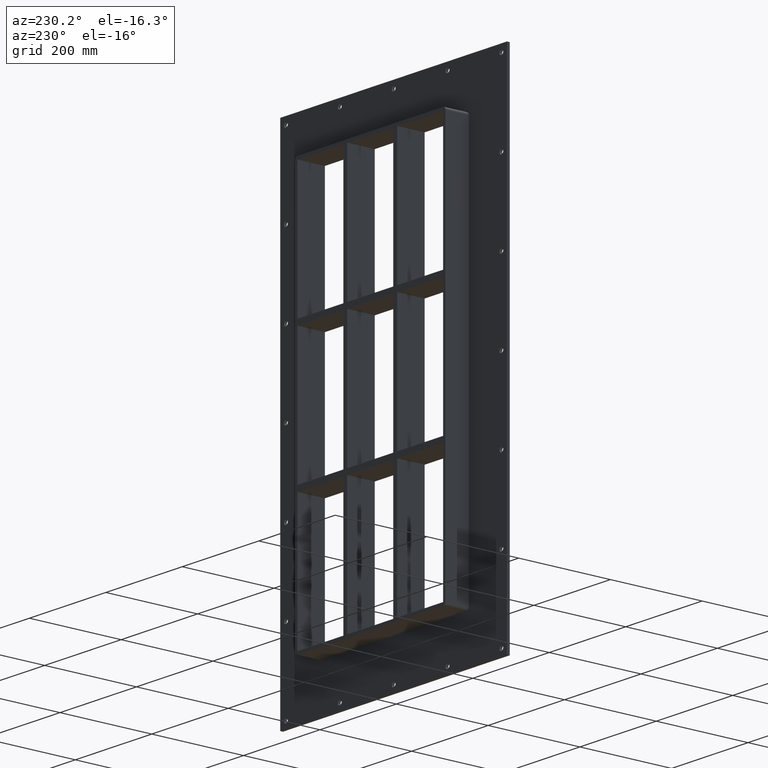
[diagram: clean part render]
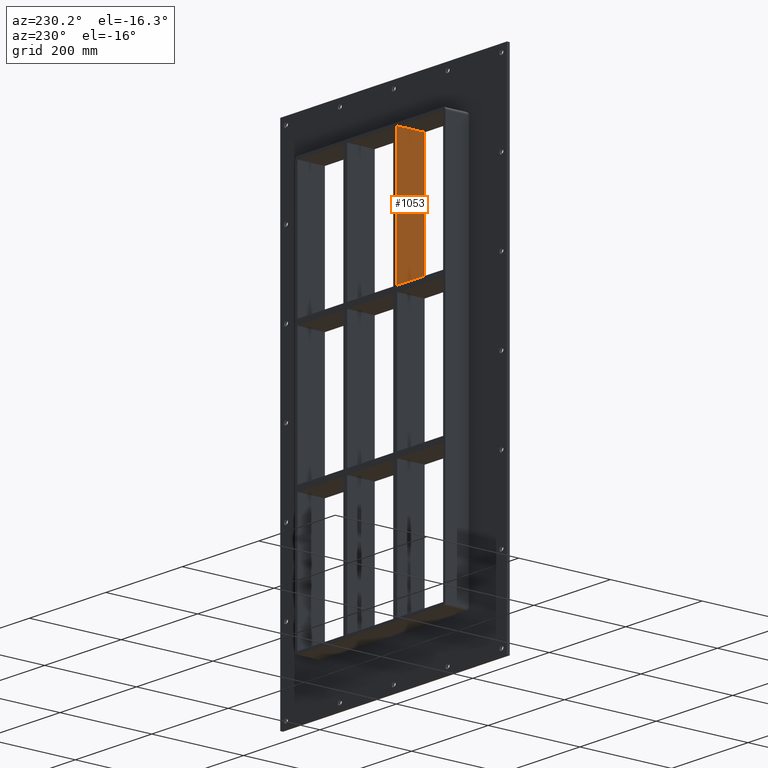
[diagram: same view with one face highlighted and labeled with its STEP entity id]
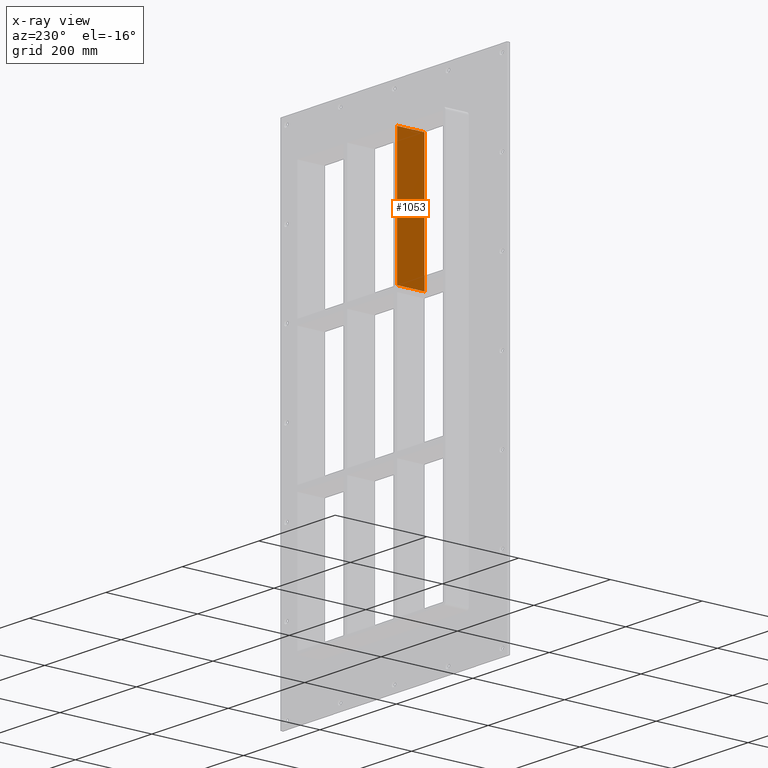
[diagram: x-ray of the same camera — body ghosted, the highlighted face saturated]
A machine part, auxiliary view. The second image highlights one B-rep face of the part: STEP entity #1053.
The next image is the same camera in x-ray: the body ghosted, the highlighted face saturated — about 0% of this face is hidden behind the body in this view.
In plain terms, the highlighted planar face has unit normal (-1, 0, 0).
Its self-contained STEP definition (entity closure, byte-faithful):
#753=CARTESIAN_POINT('',(-70.250000000001393,57.0,150.99999999999994));
#754=VERTEX_POINT('',#753);
#755=CARTESIAN_POINT('',(-70.250000000001393,-3.0,150.99999999999994));
#756=VERTEX_POINT('',#755);
#757=CARTESIAN_POINT('',(-70.250000000001393,57.0,150.99999999999994));
#758=DIRECTION('',(0.0,-1.0,0.0));
#759=VECTOR('',#758,60.0);
#760=LINE('',#757,#759);
#761=EDGE_CURVE('',#754,#756,#760,.T.);
#1023=CARTESIAN_POINT('',(-70.250000000001265,-3.0,-429.00000000000006));
#1024=DIRECTION('',(-1.0,0.0,0.0));
#1025=DIRECTION('',(0.0,0.0,1.0));
#1026=AXIS2_PLACEMENT_3D('',#1023,#1024,#1025);
#1027=PLANE('',#1026);
#1028=ORIENTED_EDGE('',*,*,#761,.T.);
#1029=CARTESIAN_POINT('',(-70.25000000000145,-3.0,429.00000000000006));
#1030=VERTEX_POINT('',#1029);
#1031=CARTESIAN_POINT('',(-70.250000000001378,-3.0,150.99999999999994));
#1032=DIRECTION('',(0.0,0.0,1.0));
#1033=VECTOR('',#1032,278.00000000000011);
#1034=LINE('',#1031,#1033);
#1035=EDGE_CURVE('',#756,#1030,#1034,.T.);
#1036=ORIENTED_EDGE('',*,*,#1035,.T.);
#1037=CARTESIAN_POINT('',(-70.25000000000145,57.0,429.00000000000006));
#1038=VERTEX_POINT('',#1037);
#1039=CARTESIAN_POINT('',(-70.25000000000145,57.000000000000007,429.00000000000006));
#1040=DIRECTION('',(0.0,-1.0,0.0));
#1041=VECTOR('',#1040,60.000000000000007);
#1042=LINE('',#1039,#1041);
#1043=EDGE_CURVE('',#1038,#1030,#1042,.T.);
#1044=ORIENTED_EDGE('',*,*,#1043,.F.);
#1045=CARTESIAN_POINT('',(-70.250000000001378,57.0,150.99999999999994));
#1046=DIRECTION('',(0.0,0.0,1.0));
#1047=VECTOR('',#1046,278.00000000000011);
#1048=LINE('',#1045,#1047);
#1049=EDGE_CURVE('',#754,#1038,#1048,.T.);
#1050=ORIENTED_EDGE('',*,*,#1049,.F.);
#1051=EDGE_LOOP('',(#1028,#1036,#1044,#1050));
#1052=FACE_OUTER_BOUND('',#1051,.T.);
#1053=ADVANCED_FACE('',(#1052),#1027,.T.);